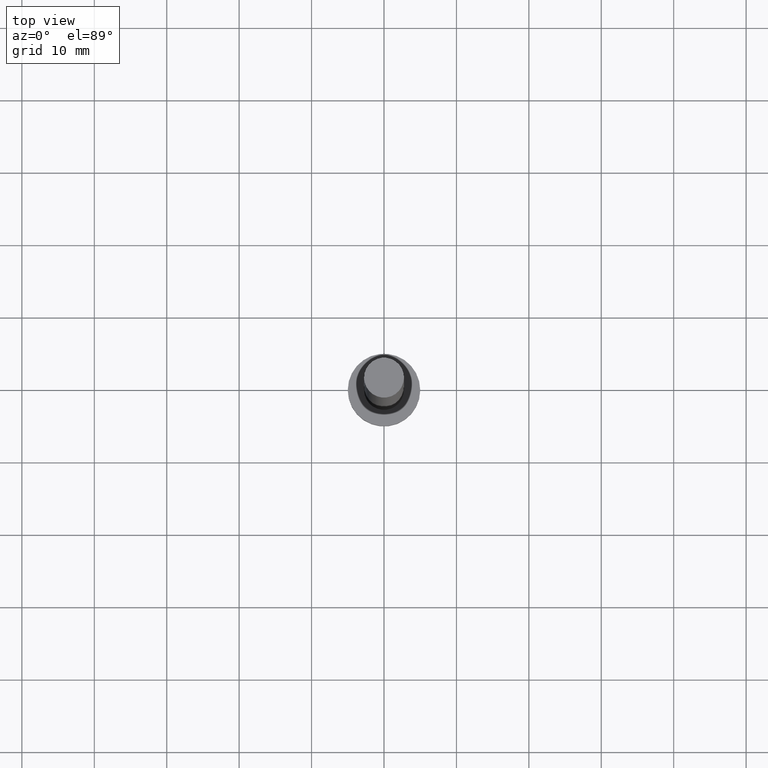
[diagram: clean part render]
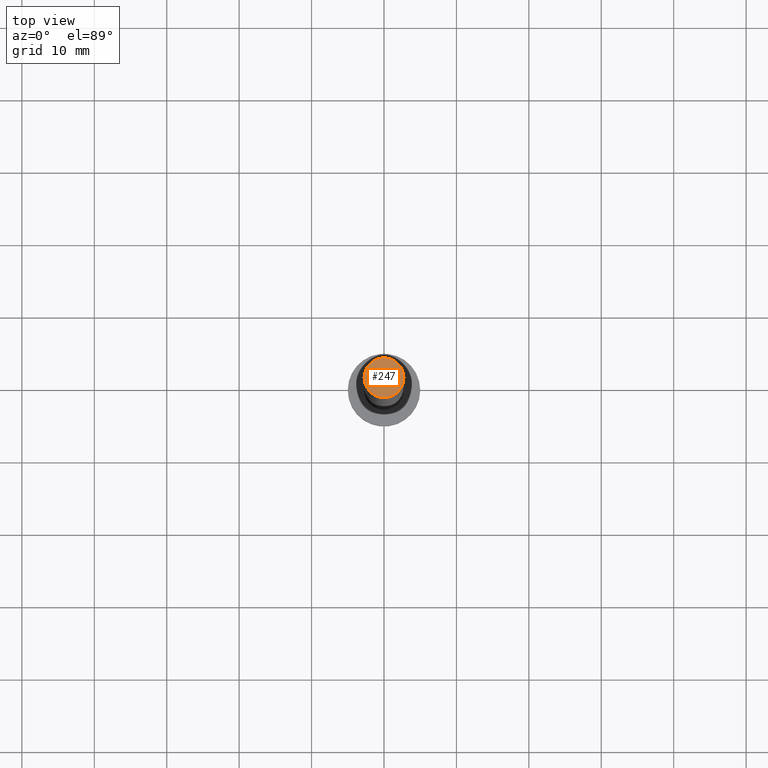
[diagram: same view with one face highlighted and labeled with its STEP entity id]
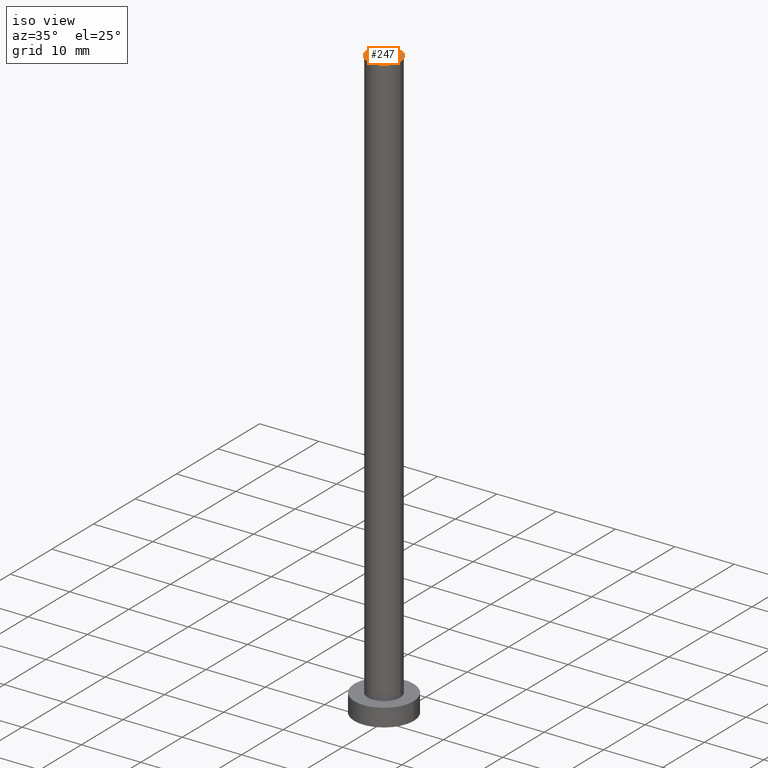
[diagram: same view with one face highlighted and labeled with its STEP entity id]
A machine part, top view. The second image highlights one B-rep face of the part: STEP entity #247.
A second angle (iso view) of the same face is appended — the face is thin or edge-on in the first view.
In plain terms, the highlighted planar face has unit normal (0, 0, 1).
Its self-contained STEP definition (entity closure, byte-faithful):
#12 = AXIS2_PLACEMENT_3D ( 'NONE', #128, #248, #53 ) ;
#47 = ORIENTED_EDGE ( 'NONE', *, *, #87, .T. ) ;
#49 = EDGE_LOOP ( 'NONE', ( #47, #151 ) ) ;
#53 = DIRECTION ( 'NONE',  ( 1.000000000000000000, 0.000000000000000000, 0.000000000000000000 ) ) ;
#72 = FACE_OUTER_BOUND ( 'NONE', #49, .T. ) ;
#74 = CARTESIAN_POINT ( 'NONE',  ( 0.000000000000000000, 0.000000000000000000, 100.0000000000000000 ) ) ;
#84 = DIRECTION ( 'NONE',  ( 0.000000000000000000, 0.000000000000000000, 1.000000000000000000 ) ) ;
#87 = EDGE_CURVE ( 'NONE', #200, #147, #143, .T. ) ;
#88 = DIRECTION ( 'NONE',  ( 0.000000000000000000, 0.000000000000000000, 1.000000000000000000 ) ) ;
#92 = CARTESIAN_POINT ( 'NONE',  ( 2.750000000000000000, 3.367778697655220519E-16, 100.0000000000000000 ) ) ;
#118 = AXIS2_PLACEMENT_3D ( 'NONE', #243, #84, #159 ) ;
#123 = CARTESIAN_POINT ( 'NONE',  ( -2.750000000000000000, 0.000000000000000000, 100.0000000000000000 ) ) ;
#126 = CIRCLE ( 'NONE', #12, 2.750000000000000000 ) ;
#128 = CARTESIAN_POINT ( 'NONE',  ( 0.000000000000000000, 0.000000000000000000, 100.0000000000000000 ) ) ;
#143 = CIRCLE ( 'NONE', #118, 2.750000000000000000 ) ;
#147 = VERTEX_POINT ( 'NONE', #92 ) ;
#151 = ORIENTED_EDGE ( 'NONE', *, *, #242, .T. ) ;
#159 = DIRECTION ( 'NONE',  ( 1.000000000000000000, 0.000000000000000000, 0.000000000000000000 ) ) ;
#191 = DIRECTION ( 'NONE',  ( 1.000000000000000000, 0.000000000000000000, -0.000000000000000000 ) ) ;
#200 = VERTEX_POINT ( 'NONE', #123 ) ;
#242 = EDGE_CURVE ( 'NONE', #147, #200, #126, .T. ) ;
#243 = CARTESIAN_POINT ( 'NONE',  ( 0.000000000000000000, 0.000000000000000000, 100.0000000000000000 ) ) ;
#246 = AXIS2_PLACEMENT_3D ( 'NONE', #74, #88, #191 ) ;
#247 = ADVANCED_FACE ( 'NONE', ( #72 ), #250, .T. ) ;
#248 = DIRECTION ( 'NONE',  ( 0.000000000000000000, 0.000000000000000000, 1.000000000000000000 ) ) ;
#250 = PLANE ( 'NONE',  #246 ) ;